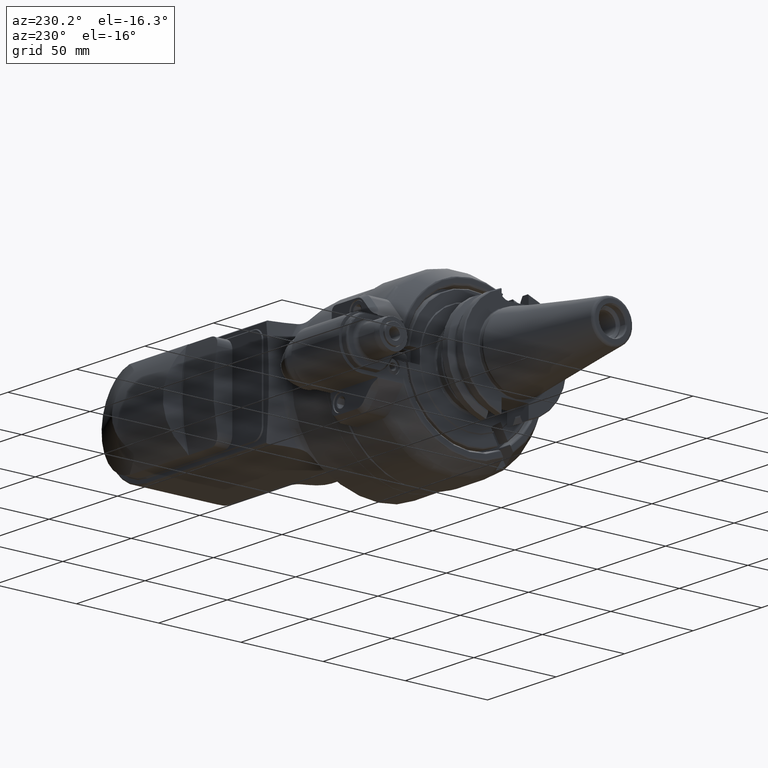
[diagram: clean part render]
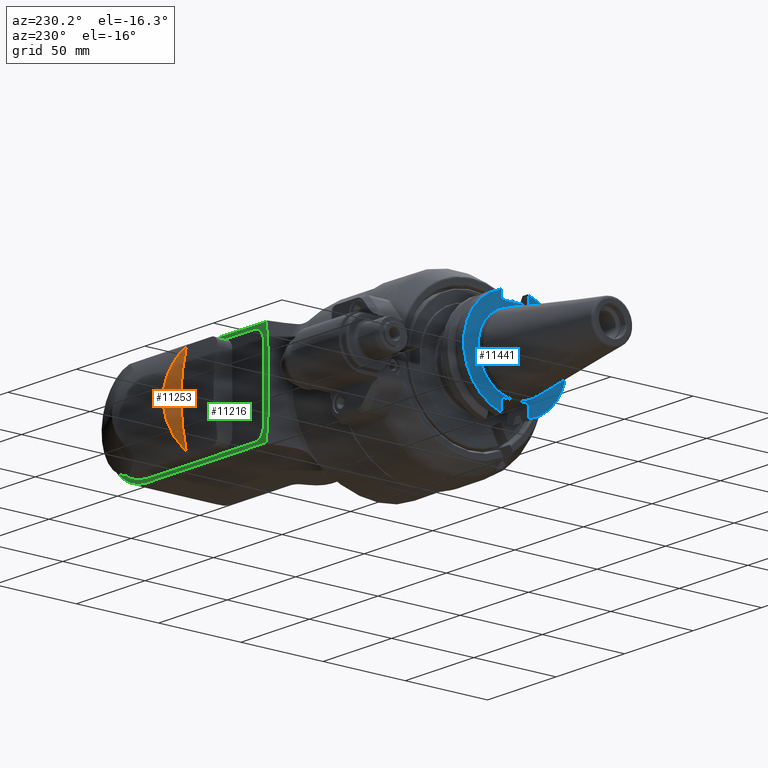
[diagram: same view with three faces highlighted in distinct colors, each labeled with its STEP entity id]
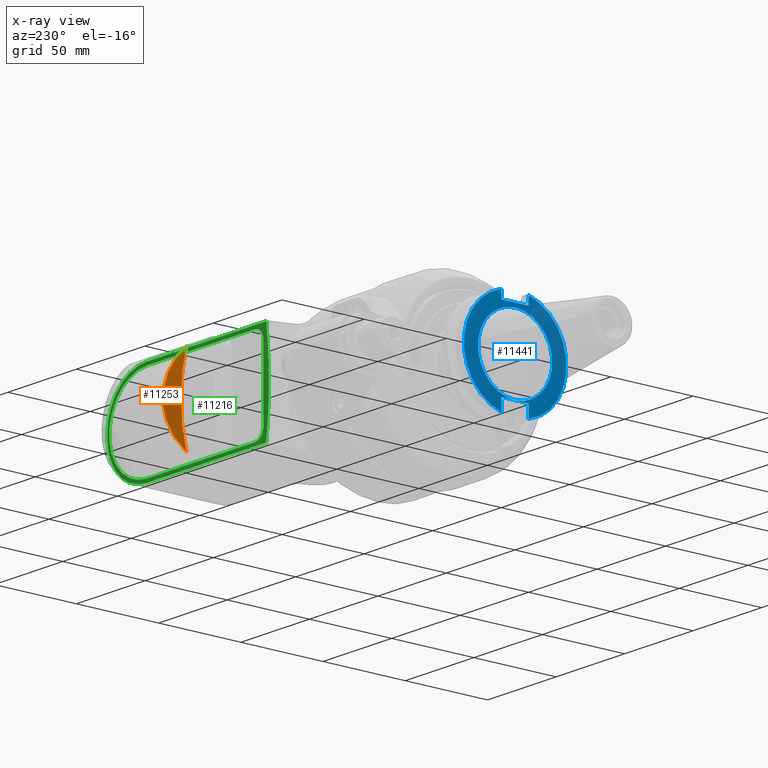
[diagram: x-ray of the same camera — body ghosted, the three highlighted faces saturated]
A machine part, auxiliary view with three faces highlighted in distinct colors.
The next image is the same camera in x-ray (body ghosted, the three faces saturated) — at least one of them is partly hidden behind the body in this view.
Their STEP definitions:

[orange] entity #11253 — the highlighted conical surface has half-angle 45 deg.
#234=B_SPLINE_CURVE_WITH_KNOTS('',3,(#17525,#17526,#17527,#17528,#17529,
#17530,#17531,#17532,#17533,#17534,#17535,#17536,#17537,#17538,#17539,#17540,
#17541,#17542,#17543,#17544,#17545,#17546),.UNSPECIFIED.,.F.,.F.,(4,2,2,
2,2,2,2,2,2,2,4),(2.12637802891362,2.65267105689301,3.20723779839185,3.76180453989069,
4.31637128138953,4.87093802288837,5.42550476438721,5.98007150588606,6.5346382473849,
7.08920498888374,7.61549801685029),.UNSPECIFIED.);
#402=CONICAL_SURFACE('',#12088,104.,0.785398163397448);
#1046=FACE_OUTER_BOUND('',#1773,.T.);
#1773=EDGE_LOOP('',(#7937,#7938));
#4130=CIRCLE('',#12074,101.);
#4871=VERTEX_POINT('',#17522);
#4872=VERTEX_POINT('',#17524);
#6044=EDGE_CURVE('',#4872,#4871,#234,.F.);
#6053=EDGE_CURVE('',#4872,#4871,#4130,.T.);
#7937=ORIENTED_EDGE('',*,*,#6053,.F.);
#7938=ORIENTED_EDGE('',*,*,#6044,.T.);
#11253=ADVANCED_FACE('',(#1046),#402,.T.);
#12074=AXIS2_PLACEMENT_3D('',#17562,#13681,#13682);
#12088=AXIS2_PLACEMENT_3D('',#17612,#13719,#13720);
#13681=DIRECTION('center_axis',(-1.,0.,0.));
#13682=DIRECTION('ref_axis',(0.,0.967193734298567,0.254039918779691));
#13719=DIRECTION('center_axis',(1.,0.,0.));
#13720=DIRECTION('ref_axis',(0.,1.,-5.81879329583497E-13));
#17522=CARTESIAN_POINT('',(-40.5,69.68656716403,-25.65803179684));
#17524=CARTESIAN_POINT('',(-40.5,69.68656716415,25.65803179675));
#17525=CARTESIAN_POINT('Ctrl Pts',(-40.5000000000842,69.6865671640521,-25.6580317968101));
#17526=CARTESIAN_POINT('Ctrl Pts',(-39.7805961066877,70.7710416899176,-24.3610188131481));
#17527=CARTESIAN_POINT('Ctrl Pts',(-39.1267688557372,71.768208789152,-22.9996438990602));
#17528=CARTESIAN_POINT('Ctrl Pts',(-37.9319380085313,73.6042361419688,-20.1392198942799));
#17529=CARTESIAN_POINT('Ctrl Pts',(-37.355018565484,74.4993938425121,-18.5299704327927));
#17530=CARTESIAN_POINT('Ctrl Pts',(-36.3383906349042,76.0873559789659,-15.1028074833142));
#17531=CARTESIAN_POINT('Ctrl Pts',(-35.8986643778306,76.7799845861316,-13.2848177996117));
#17532=CARTESIAN_POINT('Ctrl Pts',(-35.1939667515053,77.8943922112106,-9.54148156623355));
#17533=CARTESIAN_POINT('Ctrl Pts',(-34.9285560837867,78.3167355011833,-7.61377205323289));
#17534=CARTESIAN_POINT('Ctrl Pts',(-34.5815619771257,78.8695693136135,-3.76731444051172));
#17535=CARTESIAN_POINT('Ctrl Pts',(-34.5,79.,-1.84855580499614));
#17536=CARTESIAN_POINT('Ctrl Pts',(-34.5,79.,1.84855580499613));
#17537=CARTESIAN_POINT('Ctrl Pts',(-34.5815619771257,78.8695693136135,3.76731444051172));
#17538=CARTESIAN_POINT('Ctrl Pts',(-34.9285560837867,78.3167355011833,7.61377205323289));
#17539=CARTESIAN_POINT('Ctrl Pts',(-35.1939667515052,77.8943922112106,9.54148156623356));
#17540=CARTESIAN_POINT('Ctrl Pts',(-35.8986643778306,76.7799845861316,13.2848177996117));
#17541=CARTESIAN_POINT('Ctrl Pts',(-36.3383906349042,76.0873559789659,15.1028074833141));
#17542=CARTESIAN_POINT('Ctrl Pts',(-37.355018565484,74.4993938425121,18.5299704327926));
#17543=CARTESIAN_POINT('Ctrl Pts',(-37.9319380085313,73.6042361419688,20.1392198942799));
#17544=CARTESIAN_POINT('Ctrl Pts',(-39.126768855723,71.7682087891737,22.9996438990263));
#17545=CARTESIAN_POINT('Ctrl Pts',(-39.7805961066558,70.7710416899663,24.3610188130818));
#17546=CARTESIAN_POINT('Ctrl Pts',(-40.5000000000316,69.6865671641315,25.6580317967152));
#17562=CARTESIAN_POINT('Origin',(-40.5,-28.,0.));
#17612=CARTESIAN_POINT('Origin',(-37.5,-28.,0.));

[blue] entity #11441 — the highlighted planar face has unit normal (-1, 0, 0).
#588=FACE_BOUND('',#1990,.T.);
#787=PLANE('',#12462);
#1234=FACE_OUTER_BOUND('',#1989,.T.);
#1989=EDGE_LOOP('',(#8851,#8852,#8853,#8854,#8855,#8856,#8857,#8858));
#1990=EDGE_LOOP('',(#8859));
#2818=LINE('',#18954,#3582);
#2823=LINE('',#18986,#3587);
#2830=LINE('',#19050,#3594);
#2833=LINE('',#19085,#3597);
#2834=LINE('',#19089,#3598);
#2835=LINE('',#19090,#3599);
#3582=VECTOR('',#14619,16.383);
#3587=VECTOR('',#14626,7.551284820588);
#3594=VECTOR('',#14645,5.138284820588);
#3597=VECTOR('',#14666,7.551284820588);
#3598=VECTOR('',#14669,5.138284820588);
#3599=VECTOR('',#14670,16.383);
#4315=CIRCLE('',#12461,31.25);
#4316=CIRCLE('',#12463,31.25);
#4317=CIRCLE('',#12464,22.525);
#5168=VERTEX_POINT('',#18951);
#5169=VERTEX_POINT('',#18953);
#5175=VERTEX_POINT('',#18985);
#5185=VERTEX_POINT('',#19038);
#5186=VERTEX_POINT('',#19049);
#5189=VERTEX_POINT('',#19084);
#5190=VERTEX_POINT('',#19086);
#5191=VERTEX_POINT('',#19088);
#5192=VERTEX_POINT('',#19091);
#6499=EDGE_CURVE('',#5168,#5169,#2818,.T.);
#6506=EDGE_CURVE('',#5169,#5175,#2823,.T.);
#6520=EDGE_CURVE('',#5185,#5186,#2830,.T.);
#6528=EDGE_CURVE('',#5185,#5175,#4315,.T.);
#6529=EDGE_CURVE('',#5189,#5168,#2833,.T.);
#6530=EDGE_CURVE('',#5189,#5190,#4316,.T.);
#6531=EDGE_CURVE('',#5191,#5190,#2834,.T.);
#6532=EDGE_CURVE('',#5186,#5191,#2835,.T.);
#6533=EDGE_CURVE('',#5192,#5192,#4317,.T.);
#8851=ORIENTED_EDGE('',*,*,#6528,.T.);
#8852=ORIENTED_EDGE('',*,*,#6506,.F.);
#8853=ORIENTED_EDGE('',*,*,#6499,.F.);
#8854=ORIENTED_EDGE('',*,*,#6529,.F.);
#8855=ORIENTED_EDGE('',*,*,#6530,.T.);
#8856=ORIENTED_EDGE('',*,*,#6531,.F.);
#8857=ORIENTED_EDGE('',*,*,#6532,.F.);
#8858=ORIENTED_EDGE('',*,*,#6520,.F.);
#8859=ORIENTED_EDGE('',*,*,#6533,.T.);
#11441=ADVANCED_FACE('',(#1234,#588),#787,.T.);
#12461=AXIS2_PLACEMENT_3D('',#19082,#14662,#14663);
#12462=AXIS2_PLACEMENT_3D('',#19083,#14664,#14665);
#12463=AXIS2_PLACEMENT_3D('',#19087,#14667,#14668);
#12464=AXIS2_PLACEMENT_3D('',#19092,#14671,#14672);
#14619=DIRECTION('',(0.,1.,0.));
#14626=DIRECTION('',(0.,-2.940487747458E-14,-1.));
#14645=DIRECTION('',(0.,3.94109487431E-14,-1.));
#14662=DIRECTION('center_axis',(-1.,0.,0.));
#14663=DIRECTION('ref_axis',(0.,0.262127999999995,0.965033114258782));
#14664=DIRECTION('center_axis',(-1.,0.,0.));
#14665=DIRECTION('ref_axis',(0.,0.,-1.));
#14666=DIRECTION('',(0.,-2.7758204336E-14,1.));
#14667=DIRECTION('center_axis',(-1.,0.,0.));
#14668=DIRECTION('ref_axis',(0.,-0.262127999999995,-0.965033114258782));
#14669=DIRECTION('',(0.,4.217662935665E-14,1.));
#14670=DIRECTION('',(0.,-1.,0.));
#14671=DIRECTION('center_axis',(1.,0.,0.));
#14672=DIRECTION('ref_axis',(0.,0.,1.));
#18951=CARTESIAN_POINT('',(-196.825,-8.1915,-22.606));
#18953=CARTESIAN_POINT('',(-196.825,8.1915,-22.606));
#18954=CARTESIAN_POINT('',(-196.825,-8.1915,-22.606));
#18985=CARTESIAN_POINT('',(-196.825,8.1915,-30.15728482059));
#18986=CARTESIAN_POINT('',(-196.825,8.1915,-22.606));
#19038=CARTESIAN_POINT('',(-196.825,8.1915,30.15728482059));
#19049=CARTESIAN_POINT('',(-196.825,8.1915,25.019));
#19050=CARTESIAN_POINT('',(-196.825,8.1915,30.15728482059));
#19082=CARTESIAN_POINT('Origin',(-196.825,0.,0.));
#19083=CARTESIAN_POINT('Origin',(-196.825,0.,-22.468145));
#19084=CARTESIAN_POINT('',(-196.825,-8.1915,-30.15728482059));
#19085=CARTESIAN_POINT('',(-196.825,-8.1915,-30.15728482059));
#19086=CARTESIAN_POINT('',(-196.825,-8.1915,30.15728482059));
#19087=CARTESIAN_POINT('Origin',(-196.825,0.,0.));
#19088=CARTESIAN_POINT('',(-196.825,-8.1915,25.019));
#19089=CARTESIAN_POINT('',(-196.825,-8.1915,25.019));
#19090=CARTESIAN_POINT('',(-196.825,8.1915,25.019));
#19091=CARTESIAN_POINT('',(-196.825,2.75851691507941E-15,-22.525));
#19092=CARTESIAN_POINT('Origin',(-196.825,0.,0.));

[green] entity #11216 — the highlighted planar face has unit normal (0, -1, 0).
#113=(
BOUNDED_CURVE()
B_SPLINE_CURVE(2,(#17123,#17124,#17125),.UNSPECIFIED.,.F.,.F.)
B_SPLINE_CURVE_WITH_KNOTS((3,3),(-64.9448907529112,-37.8298054529915),
 .UNSPECIFIED.)
CURVE()
GEOMETRIC_REPRESENTATION_ITEM()
RATIONAL_B_SPLINE_CURVE((4.47094782298557,4.99029878578708,4.47094782298541))
REPRESENTATION_ITEM('')
);
#558=FACE_BOUND('',#1735,.T.);
#690=PLANE('',#12030);
#1009=FACE_OUTER_BOUND('',#1734,.T.);
#1734=EDGE_LOOP('',(#7759,#7760,#7761,#7762,#7763,#7764,#7765,#7766));
#1735=EDGE_LOOP('',(#7767,#7768,#7769,#7770,#7771,#7772));
#2562=LINE('',#17130,#3326);
#2580=LINE('',#17308,#3344);
#2581=LINE('',#17312,#3345);
#2582=LINE('',#17315,#3346);
#2583=LINE('',#17317,#3347);
#2584=LINE('',#17323,#3348);
#2585=LINE('',#17327,#3349);
#2586=LINE('',#17330,#3350);
#3326=VECTOR('',#13483,87.60252630069);
#3344=VECTOR('',#13547,51.6025263007);
#3345=VECTOR('',#13550,2.);
#3346=VECTOR('',#13553,10.);
#3347=VECTOR('',#13554,26.);
#3348=VECTOR('',#13559,78.5);
#3349=VECTOR('',#13562,78.5);
#3350=VECTOR('',#13565,42.);
#4113=CIRCLE('',#12031,28.5);
#4114=CIRCLE('',#12032,28.5);
#4115=CIRCLE('',#12033,6.5);
#4116=CIRCLE('',#12034,27.5);
#4117=CIRCLE('',#12035,6.5);
#4806=VERTEX_POINT('',#17104);
#4810=VERTEX_POINT('',#17119);
#4812=VERTEX_POINT('',#17129);
#4835=VERTEX_POINT('',#17304);
#4836=VERTEX_POINT('',#17310);
#4837=VERTEX_POINT('',#17311);
#4838=VERTEX_POINT('',#17314);
#4839=VERTEX_POINT('',#17316);
#4840=VERTEX_POINT('',#17319);
#4841=VERTEX_POINT('',#17320);
#4842=VERTEX_POINT('',#17322);
#4843=VERTEX_POINT('',#17324);
#4844=VERTEX_POINT('',#17326);
#4845=VERTEX_POINT('',#17328);
#5944=EDGE_CURVE('',#4810,#4806,#113,.T.);
#5946=EDGE_CURVE('',#4806,#4812,#2562,.T.);
#5985=EDGE_CURVE('',#4835,#4810,#2580,.T.);
#5986=EDGE_CURVE('',#4836,#4837,#2581,.T.);
#5987=EDGE_CURVE('',#4837,#4812,#4113,.T.);
#5988=EDGE_CURVE('',#4838,#4835,#2582,.T.);
#5989=EDGE_CURVE('',#4839,#4838,#2583,.T.);
#5990=EDGE_CURVE('',#4839,#4836,#4114,.T.);
#5991=EDGE_CURVE('',#4840,#4841,#4115,.T.);
#5992=EDGE_CURVE('',#4841,#4842,#2584,.T.);
#5993=EDGE_CURVE('',#4842,#4843,#4116,.T.);
#5994=EDGE_CURVE('',#4843,#4844,#2585,.T.);
#5995=EDGE_CURVE('',#4844,#4845,#4117,.T.);
#5996=EDGE_CURVE('',#4845,#4840,#2586,.T.);
#7759=ORIENTED_EDGE('',*,*,#5986,.T.);
#7760=ORIENTED_EDGE('',*,*,#5987,.T.);
#7761=ORIENTED_EDGE('',*,*,#5946,.F.);
#7762=ORIENTED_EDGE('',*,*,#5944,.F.);
#7763=ORIENTED_EDGE('',*,*,#5985,.F.);
#7764=ORIENTED_EDGE('',*,*,#5988,.F.);
#7765=ORIENTED_EDGE('',*,*,#5989,.F.);
#7766=ORIENTED_EDGE('',*,*,#5990,.T.);
#7767=ORIENTED_EDGE('',*,*,#5991,.T.);
#7768=ORIENTED_EDGE('',*,*,#5992,.T.);
#7769=ORIENTED_EDGE('',*,*,#5993,.T.);
#7770=ORIENTED_EDGE('',*,*,#5994,.T.);
#7771=ORIENTED_EDGE('',*,*,#5995,.T.);
#7772=ORIENTED_EDGE('',*,*,#5996,.T.);
#11216=ADVANCED_FACE('',(#1009,#558),#690,.F.);
#12030=AXIS2_PLACEMENT_3D('',#17309,#13548,#13549);
#12031=AXIS2_PLACEMENT_3D('',#17313,#13551,#13552);
#12032=AXIS2_PLACEMENT_3D('',#17318,#13555,#13556);
#12033=AXIS2_PLACEMENT_3D('',#17321,#13557,#13558);
#12034=AXIS2_PLACEMENT_3D('',#17325,#13560,#13561);
#12035=AXIS2_PLACEMENT_3D('',#17329,#13563,#13564);
#13483=DIRECTION('',(1.,0.,0.));
#13547=DIRECTION('',(-1.,0.,-1.979370499621E-13));
#13548=DIRECTION('center_axis',(0.,-1.,0.));
#13549=DIRECTION('ref_axis',(-1.,0.,0.));
#13550=DIRECTION('',(0.,0.,-1.));
#13551=DIRECTION('center_axis',(0.,1.,0.));
#13552=DIRECTION('ref_axis',(1.,0.,0.));
#13553=DIRECTION('',(-1.,0.,0.));
#13554=DIRECTION('',(-1.,0.,0.));
#13555=DIRECTION('center_axis',(0.,1.,0.));
#13556=DIRECTION('ref_axis',(0.,0.,1.));
#13557=DIRECTION('center_axis',(0.,-1.,0.));
#13558=DIRECTION('ref_axis',(-1.,0.,0.));
#13559=DIRECTION('',(1.,0.,0.));
#13560=DIRECTION('center_axis',(0.,-1.,0.));
#13561=DIRECTION('ref_axis',(0.,0.,-1.));
#13562=DIRECTION('',(-1.,0.,0.));
#13563=DIRECTION('center_axis',(0.,-1.,0.));
#13564=DIRECTION('ref_axis',(1.53039973856E-14,0.,1.));
#13565=DIRECTION('',(0.,0.,-1.));
#17104=CARTESIAN_POINT('',(-86.6025263007,59.5,-29.5));
#17119=CARTESIAN_POINT('',(-86.6025263007,59.5,29.49999999999));
#17123=CARTESIAN_POINT('Ctrl Pts',(-86.6025263006967,59.5,29.499999999989));
#17124=CARTESIAN_POINT('Ctrl Pts',(-90.1137020735877,59.5,-3.95417032450496E-12));
#17125=CARTESIAN_POINT('Ctrl Pts',(-86.6025263006955,59.5,-29.4999999999988));
#17129=CARTESIAN_POINT('',(1.00000000000001,59.5,-29.5));
#17130=CARTESIAN_POINT('',(-86.6025263007,59.5,-29.5));
#17304=CARTESIAN_POINT('',(-35.,59.5,29.5));
#17308=CARTESIAN_POINT('',(-35.,59.5,29.5));
#17309=CARTESIAN_POINT('Origin',(37.,59.5,-79.8000024));
#17310=CARTESIAN_POINT('',(29.5,59.5,1.));
#17311=CARTESIAN_POINT('',(29.5,59.5,-1.));
#17312=CARTESIAN_POINT('',(29.5,59.5,1.));
#17313=CARTESIAN_POINT('Origin',(1.00000000000001,59.5,-1.));
#17314=CARTESIAN_POINT('',(-25.,59.5,29.5));
#17315=CARTESIAN_POINT('',(-25.,59.5,29.5));
#17316=CARTESIAN_POINT('',(1.00000000000001,59.5,29.5));
#17317=CARTESIAN_POINT('',(1.00000000000001,59.5,29.5));
#17318=CARTESIAN_POINT('Origin',(1.00000000000001,59.5,1.));
#17319=CARTESIAN_POINT('',(-84.5,59.5,-21.));
#17320=CARTESIAN_POINT('',(-78.,59.5,-27.5));
#17321=CARTESIAN_POINT('Origin',(-78.,59.5,-21.));
#17322=CARTESIAN_POINT('',(0.500000000000007,59.5,-27.5));
#17323=CARTESIAN_POINT('',(-78.,59.5,-27.5));
#17324=CARTESIAN_POINT('',(0.500000000000007,59.5,27.5));
#17325=CARTESIAN_POINT('Origin',(0.500000000000007,59.5,0.));
#17326=CARTESIAN_POINT('',(-78.,59.5,27.5));
#17327=CARTESIAN_POINT('',(0.500000000000007,59.5,27.5));
#17328=CARTESIAN_POINT('',(-84.5,59.5,21.));
#17329=CARTESIAN_POINT('Origin',(-78.,59.5,21.));
#17330=CARTESIAN_POINT('',(-84.5,59.5,21.));